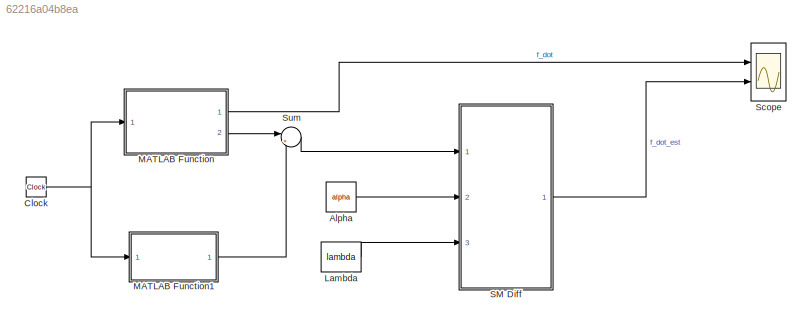
MODEL slx_62216a04b8ea
KIND model
CONFIG AbsTol = auto
CONFIG EnableMultiTasking = off
CONFIG FixedStep = 1e-5
CONFIG MaxStep = auto
CONFIG MinStep = auto
CONFIG RelTol = 1e-4
CONFIG SampleTimeConstraint = Unconstrained
CONFIG Solver = ode4
CONFIG SolverName = ode4
CONFIG StartTime = 0.0
CONFIG StopTime = 10
BLOCK [Constant] Alpha
  Value = alpha
BLOCK [Clock] Clock
BLOCK [Constant] Lambda
  Value = lambda
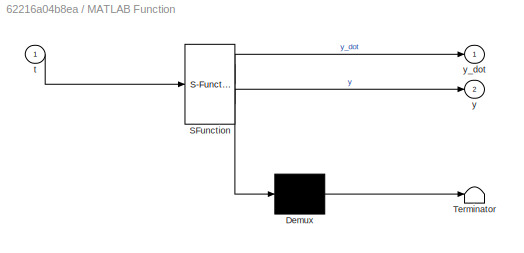
BLOCK [SubSystem] MATLAB Function
  ErrorFcn = Stateflow.Translate.translate
  PermitHierarchicalResolution = ExplicitOnly
  Ports = [1, 2]
  RequestExecContextInheritance = off
  SFBlockType = MATLAB Function
  TreatAsAtomicUnit = on
  Variant = off
BLOCK [Demux] MATLAB Function/ Demux 
  Outputs = 1
  Ports = [1, 1]
BLOCK [S-Function] MATLAB Function/ SFunction 
  EnableBusSupport = on
  FunctionName = sf_sfun
  PortCounts = [1 3]
  Ports = [1, 3]
  SFcnIsStateOwnerBlock = off
  SFunctionDeploymentMode = off
  Tag = Stateflow S-Function SMDiff 2
BLOCK [Terminator] MATLAB Function/ Terminator 
BLOCK [Inport] MATLAB Function/t
  IconDisplay = Port number
BLOCK [Outport] MATLAB Function/y
  IconDisplay = Port number
  Port = 2
BLOCK [Outport] MATLAB Function/y_dot
  IconDisplay = Port number
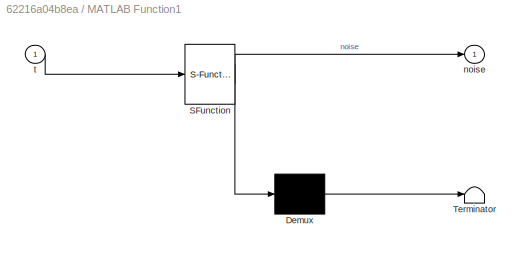
BLOCK [SubSystem] MATLAB Function1
  ErrorFcn = Stateflow.Translate.translate
  PermitHierarchicalResolution = ExplicitOnly
  Ports = [1, 1]
  RequestExecContextInheritance = off
  SFBlockType = MATLAB Function
  TreatAsAtomicUnit = on
  Variant = off
BLOCK [Demux] MATLAB Function1/ Demux 
  Outputs = 1
  Ports = [1, 1]
BLOCK [S-Function] MATLAB Function1/ SFunction 
  EnableBusSupport = on
  FunctionName = sf_sfun
  PortCounts = [1 2]
  Ports = [1, 2]
  SFcnIsStateOwnerBlock = off
  SFunctionDeploymentMode = off
  Tag = Stateflow S-Function SMDiff 1
BLOCK [Terminator] MATLAB Function1/ Terminator 
BLOCK [Outport] MATLAB Function1/noise
  IconDisplay = Port number
BLOCK [Inport] MATLAB Function1/t
  IconDisplay = Port number
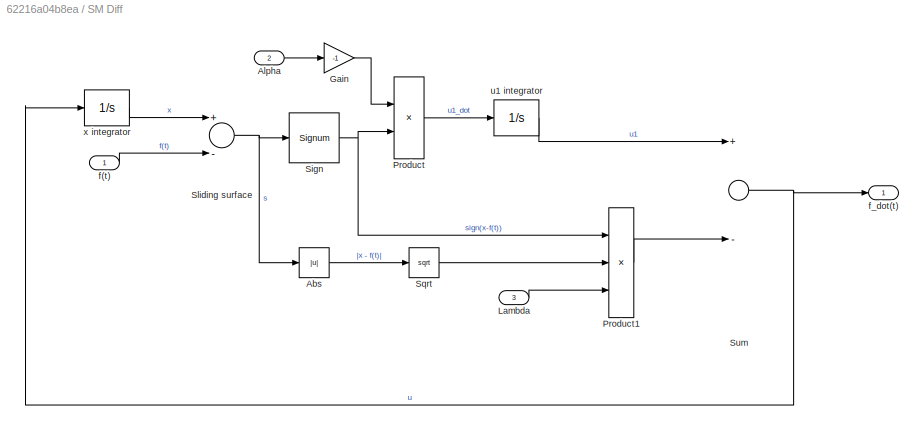
BLOCK [SubSystem] SM Diff
  Ports = [3, 1]
  RequestExecContextInheritance = off
  Variant = off
BLOCK [Abs] SM Diff/Abs
  SaturateOnIntegerOverflow = off
BLOCK [Inport] SM Diff/Alpha 
  IconDisplay = Port number
  Port = 2
BLOCK [Gain] SM Diff/Gain
  Gain = -1
  OutDataTypeStr = Inherit: Inherit via internal rule
  ParamDataTypeStr = Inherit: Inherit via internal rule
  SaturateOnIntegerOverflow = off
BLOCK [Inport] SM Diff/Lambda
  IconDisplay = Port number
  Port = 3
BLOCK [Product] SM Diff/Product
  InputSameDT = off
  OutDataTypeStr = Inherit: Inherit via internal rule
  Ports = [2, 1]
  RndMeth = Floor
  SaturateOnIntegerOverflow = off
BLOCK [Product] SM Diff/Product1
  InputSameDT = off
  Inputs = 3
  OutDataTypeStr = Inherit: Inherit via internal rule
  Ports = [3, 1]
  RndMeth = Floor
  SaturateOnIntegerOverflow = off
BLOCK [Signum] SM Diff/Sign
BLOCK [Sum] SM Diff/Sliding surface
  InputSameDT = off
  Inputs = +-
  OutDataTypeStr = Inherit: Inherit via internal rule
  Ports = [2, 1]
  SaturateOnIntegerOverflow = off
BLOCK [Sqrt] SM Diff/Sqrt
BLOCK [Sum] SM Diff/Sum
  InputSameDT = off
  Inputs = +-
  OutDataTypeStr = Inherit: Inherit via internal rule
  Ports = [2, 1]
  SaturateOnIntegerOverflow = off
BLOCK [Inport] SM Diff/f(t)
  IconDisplay = Port number
BLOCK [Outport] SM Diff/f_dot(t)
  IconDisplay = Port number
BLOCK [Integrator] SM Diff/u1 integrator
  Ports = [1, 1]
BLOCK [Integrator] SM Diff/x integrator
  Ports = [1, 1]
BLOCK [Scope] Scope
  NumInputPorts = 2
  Ports = [2]
  ScopeSpecificationString = Simulink.scopes.TimeScopeBlockCfg('CurrentConfiguration', extmgr.ConfigurationSet(extmgr.Configuration('Core','General UI',true),extmgr.Configuration('Core','Source UI',true),extmgr.Configuration('Sources','WiredSimulink',true),extmgr.Configuration('Visuals','Time Domain',true,'SerializedDisplays',{struct('MinYLimReal','-17.99248','MaxYLimReal','7.42282','YLabelReal','','MinYLimMag','0.00000','Max...<+1436ch>
BLOCK [Sum] Sum
  IconShape = round
  InputSameDT = off
  Inputs = |++
  OutDataTypeStr = Inherit: Inherit via internal rule
  Ports = [2, 1]
  SaturateOnIntegerOverflow = off
LINE Alpha:1 -> SM Diff:2
NET Clock:1 -> MATLAB Function1:1, MATLAB Function:1
LINE Lambda:1 -> SM Diff:3
LINE MATLAB Function1:1 -> Sum:2
LINE MATLAB Function:1 -> Scope:1
LINE MATLAB Function:2 -> Sum:1
LINE SM Diff/Abs:1 -> SM Diff/Sqrt:1
LINE SM Diff/Alpha :1 -> SM Diff/Gain:1
LINE SM Diff/Gain:1 -> SM Diff/Product:1
LINE SM Diff/Lambda:1 -> SM Diff/Product1:3
LINE SM Diff/Product1:1 -> SM Diff/Sum:2
LINE SM Diff/Product:1 -> SM Diff/u1 integrator:1
NET SM Diff/Sign:1 -> SM Diff/Product1:1, SM Diff/Product:2
NET SM Diff/Sliding surface:1 -> SM Diff/Abs:1, SM Diff/Sign:1
LINE SM Diff/Sqrt:1 -> SM Diff/Product1:2
NET SM Diff/Sum:1 -> SM Diff/f_dot(t):1, SM Diff/x integrator:1
LINE SM Diff/f(t):1 -> SM Diff/Sliding surface:2
LINE SM Diff/u1 integrator:1 -> SM Diff/Sum:1
LINE SM Diff/x integrator:1 -> SM Diff/Sliding surface:1
LINE SM Diff:1 -> Scope:2
LINE Sum:1 -> SM Diff:1
note: NET lines group one-source signal fan-out (src -> all destinations, sorted); 1:1 wires keep LINE
CHART MATLAB Function1 states=1 transitions=1
  STATE_LABEL 'eML_blk_kernel()'
  STATE_LABEL 'SCRIPT:\nfunction noise = fcn(t)\n\nnoise = 0.01*cos(100*t);\n'
CHART MATLAB Function states=1 transitions=1
  STATE_LABEL 'eML_blk_kernel()'
  STATE_LABEL 'SCRIPT:\nfunction [y_dot, y] = fcn(t)\n\n\ny_dot = 3*cos(3*t) + 2*sin(t);\ny = sin(3*t) - 2*cos(t);\n'
